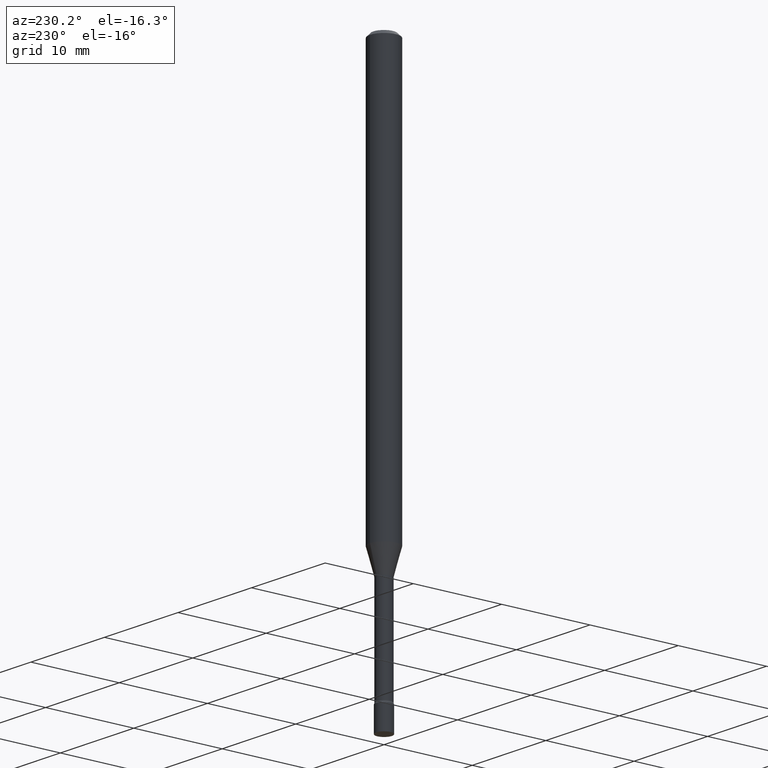
[diagram: clean part render]
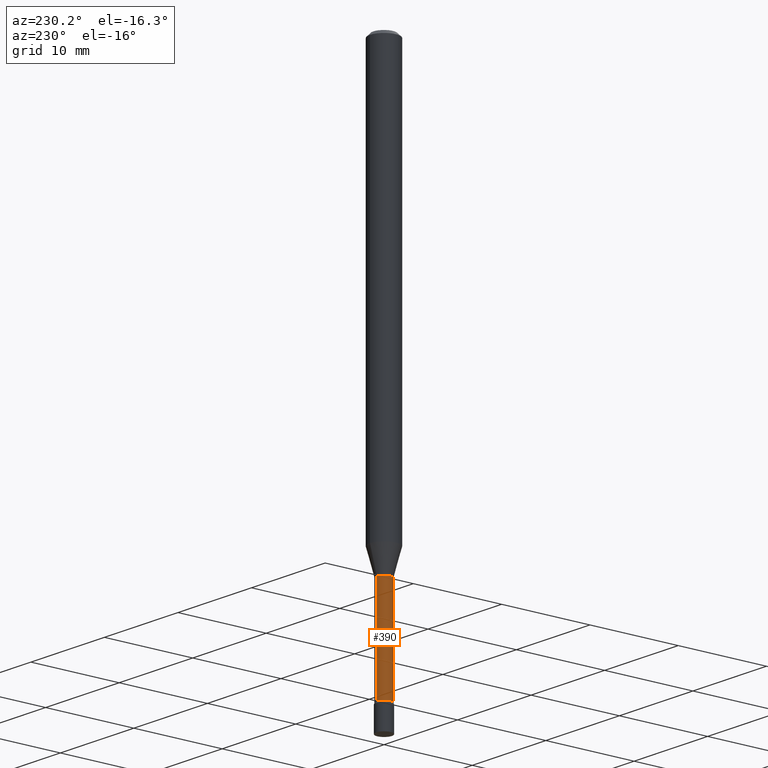
[diagram: same view with one face highlighted and labeled with its STEP entity id]
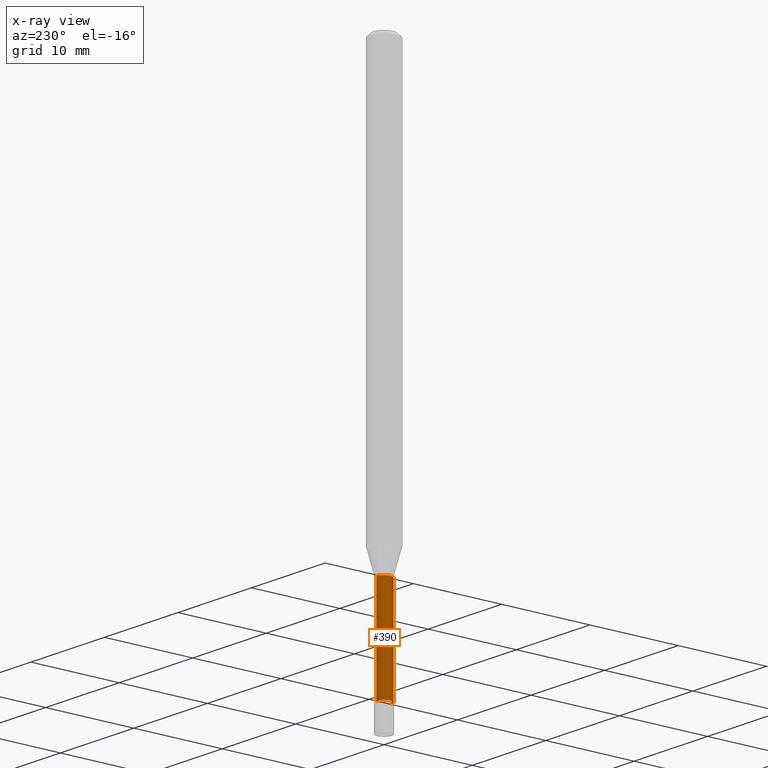
[diagram: x-ray of the same camera — body ghosted, the highlighted face saturated]
A machine part, auxiliary view. The second image highlights one B-rep face of the part: STEP entity #390.
The next image is the same camera in x-ray: the body ghosted, the highlighted face saturated — about 0% of this face is hidden behind the body in this view.
In plain terms, the highlighted cylindrical surface (edge-blend (fillet) strip) has radius 0.8357 mm, axis along (-0, 0, 1).
Its self-contained STEP definition (entity closure, byte-faithful):
#12 = CYLINDRICAL_SURFACE ( 'NONE', #33, 0.03290000000000001951 ) ;
#20 = DIRECTION ( 'NONE',  ( -6.982962677686265133E-15, -1.000000000000000000, 3.491404096004088534E-15 ) ) ;
#33 = AXIS2_PLACEMENT_3D ( 'NONE', #187, #503, #20 ) ;
#37 = LINE ( 'NONE', #86, #489 ) ;
#67 = CARTESIAN_POINT ( 'NONE',  ( -2.297394720958782513E-16, -0.03290000000000001951, 1.148671947585345758E-16 ) ) ;
#79 = EDGE_CURVE ( 'NONE', #421, #115, #257, .T. ) ;
#86 = CARTESIAN_POINT ( 'NONE',  ( 2.337685600650730505E-16, 0.03290000000000001951, -1.148671947585345758E-16 ) ) ;
#89 = CIRCLE ( 'NONE', #155, 0.03290000000000004032 ) ;
#104 = VECTOR ( 'NONE', #219, 39.37007874015748143 ) ;
#111 = ORIENTED_EDGE ( 'NONE', *, *, #211, .F. ) ;
#115 = VERTEX_POINT ( 'NONE', #356 ) ;
#118 = VERTEX_POINT ( 'NONE', #255 ) ;
#143 = DIRECTION ( 'NONE',  ( -2.445522744571361657E-29, 3.491404096004088929E-15, 1.000000000000000000 ) ) ;
#148 = FACE_OUTER_BOUND ( 'NONE', #310, .T. ) ;
#155 = AXIS2_PLACEMENT_3D ( 'NONE', #445, #254, #410 ) ;
#187 = CARTESIAN_POINT ( 'NONE',  ( 0.000000000000000000, 0.000000000000000000, 0.000000000000000000 ) ) ;
#208 = DIRECTION ( 'NONE',  ( -6.982962677686265133E-15, -1.000000000000000000, 0.000000000000000000 ) ) ;
#211 = EDGE_CURVE ( 'NONE', #118, #421, #37, .T. ) ;
#217 = ORIENTED_EDGE ( 'NONE', *, *, #474, .T. ) ;
#219 = DIRECTION ( 'NONE',  ( -2.445522744571361657E-29, 3.491404096004088929E-15, 1.000000000000000000 ) ) ;
#254 = DIRECTION ( 'NONE',  ( -2.445522744571361657E-29, 3.491404096004088929E-15, 1.000000000000000000 ) ) ;
#255 = CARTESIAN_POINT ( 'NONE',  ( 2.412292587906126425E-16, 0.03289999999999169977, -2.387345589506696175 ) ) ;
#257 = CIRCLE ( 'NONE', #313, 0.03289999999999999869 ) ;
#264 = LINE ( 'NONE', #67, #104 ) ;
#282 = CARTESIAN_POINT ( 'NONE',  ( 4.749143512126885969E-29, -6.780218727287819481E-15, -1.941974787463811136 ) ) ;
#310 = EDGE_LOOP ( 'NONE', ( #111, #361, #217, #384 ) ) ;
#313 = AXIS2_PLACEMENT_3D ( 'NONE', #282, #143, #208 ) ;
#353 = EDGE_CURVE ( 'NONE', #118, #467, #89, .T. ) ;
#356 = CARTESIAN_POINT ( 'NONE',  ( -2.297394720958306238E-16, -0.03290000000000677799, -1.941974787463811136 ) ) ;
#361 = ORIENTED_EDGE ( 'NONE', *, *, #353, .T. ) ;
#384 = ORIENTED_EDGE ( 'NONE', *, *, #79, .F. ) ;
#390 = ADVANCED_FACE ( 'NONE', ( #148 ), #12, .T. ) ;
#395 = DIRECTION ( 'NONE',  ( -2.445522744571361657E-29, 3.491404096004088929E-15, 1.000000000000000000 ) ) ;
#410 = DIRECTION ( 'NONE',  ( -6.982962677686266711E-15, -1.000000000000000000, 0.000000000000000000 ) ) ;
#421 = VERTEX_POINT ( 'NONE', #472 ) ;
#434 = CARTESIAN_POINT ( 'NONE',  ( -2.297394720958200235E-16, -0.03290000000000837393, -2.387345589506696175 ) ) ;
#445 = CARTESIAN_POINT ( 'NONE',  ( 5.838307938290751583E-29, -8.335188169780975130E-15, -2.387345589506696175 ) ) ;
#467 = VERTEX_POINT ( 'NONE', #434 ) ;
#472 = CARTESIAN_POINT ( 'NONE',  ( 2.337685600651314262E-16, 0.03289999999999321939, -1.941974787463811136 ) ) ;
#474 = EDGE_CURVE ( 'NONE', #467, #115, #264, .T. ) ;
#489 = VECTOR ( 'NONE', #395, 39.37007874015748143 ) ;
#503 = DIRECTION ( 'NONE',  ( -2.445522744571361657E-29, 3.491404096004088929E-15, 1.000000000000000000 ) ) ;